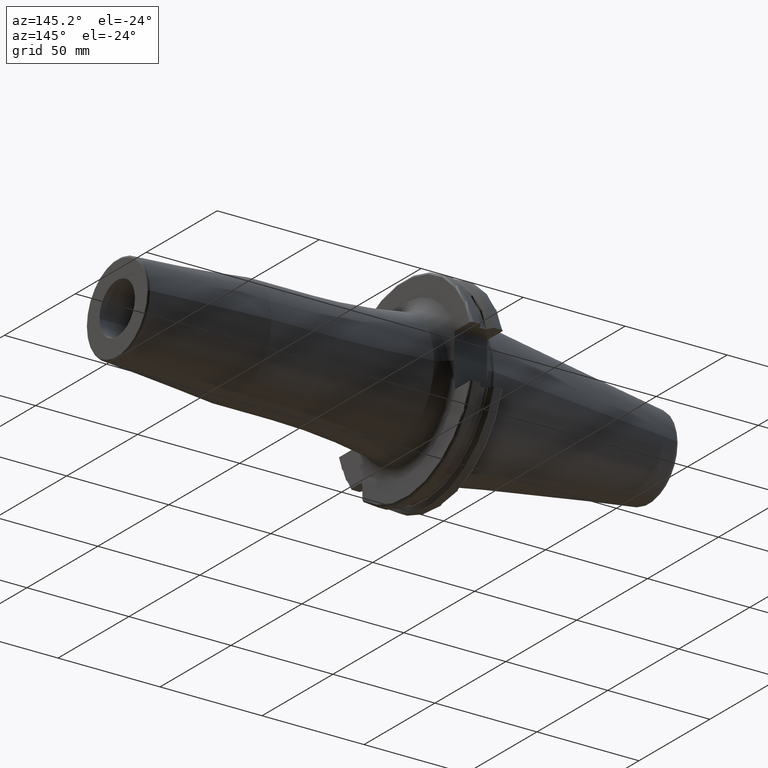
[diagram: clean part render]
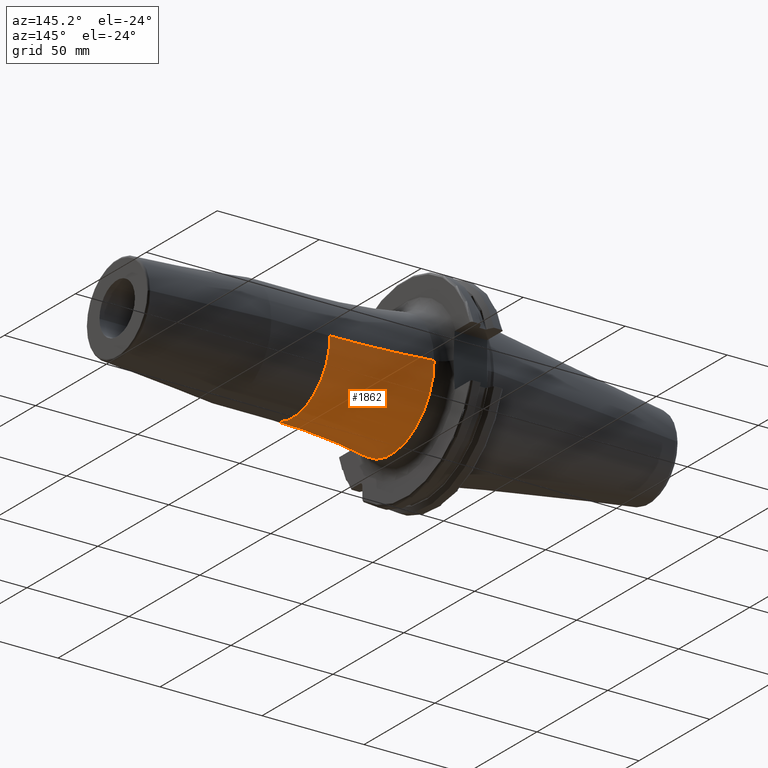
[diagram: same view with one face highlighted and labeled with its STEP entity id]
A machine part, auxiliary view. The second image highlights one B-rep face of the part: STEP entity #1862.
In plain terms, the highlighted toroidal blend (fillet) surface has major radius 326.5 mm and minor (blend) radius 300 mm.
Its self-contained STEP definition (entity closure, byte-faithful):
#234=CARTESIAN_POINT('',(2.576232876712E1,0.E0,0.E0));
#235=DIRECTION('',(1.E0,0.E0,0.E0));
#236=DIRECTION('',(0.E0,-1.E0,0.E0));
#237=AXIS2_PLACEMENT_3D('',#234,#235,#236);
#239=CARTESIAN_POINT('',(7.405E1,-3.265E2,-7.996943598432E-14));
#240=DIRECTION('',(0.E0,0.E0,1.E0));
#241=DIRECTION('',(0.E0,1.E0,0.E0));
#242=AXIS2_PLACEMENT_3D('',#239,#240,#241);
#244=CARTESIAN_POINT('',(7.405E1,3.265E2,3.998471799216E-14));
#245=DIRECTION('',(0.E0,0.E0,-1.E0));
#246=DIRECTION('',(0.E0,-1.E0,0.E0));
#247=AXIS2_PLACEMENT_3D('',#244,#245,#246);
#249=CARTESIAN_POINT('',(7.405E1,0.E0,0.E0));
#250=DIRECTION('',(1.E0,0.E0,0.E0));
#251=DIRECTION('',(0.E0,-1.E0,0.E0));
#252=AXIS2_PLACEMENT_3D('',#249,#250,#251);
#1509=CARTESIAN_POINT('',(7.405E1,2.65E1,0.E0));
#1510=CARTESIAN_POINT('',(7.405E1,-2.65E1,0.E0));
#1511=VERTEX_POINT('',#1509);
#1512=VERTEX_POINT('',#1510);
#1520=CARTESIAN_POINT('',(2.576232876712E1,-3.041166722259E1,0.E0));
#1521=CARTESIAN_POINT('',(2.576232876712E1,3.041166722259E1,0.E0));
#1522=VERTEX_POINT('',#1520);
#1523=VERTEX_POINT('',#1521);
#1850=CARTESIAN_POINT('',(7.405E1,0.E0,0.E0));
#1851=DIRECTION('',(1.E0,0.E0,0.E0));
#1852=DIRECTION('',(0.E0,-1.E0,0.E0));
#1853=AXIS2_PLACEMENT_3D('',#1850,#1851,#1852);
#1854=TOROIDAL_SURFACE('',#1853,3.265E2,3.E2);
#1855=ORIENTED_EDGE('',*,*,#1790,.F.);
#1856=ORIENTED_EDGE('',*,*,#1845,.F.);
#1858=ORIENTED_EDGE('',*,*,#1857,.T.);
#1859=ORIENTED_EDGE('',*,*,#1841,.T.);
#1860=EDGE_LOOP('',(#1855,#1856,#1858,#1859));
#1861=FACE_OUTER_BOUND('',#1860,.F.);
#1862=ADVANCED_FACE('',(#1861),#1854,.F.);
#238=CIRCLE('',#237,3.041166722259E1);
#243=CIRCLE('',#242,3.E2);
#248=CIRCLE('',#247,3.E2);
#253=CIRCLE('',#252,2.65E1);
#1790=EDGE_CURVE('',#1522,#1523,#238,.T.);
#1841=EDGE_CURVE('',#1511,#1523,#248,.T.);
#1845=EDGE_CURVE('',#1512,#1522,#243,.T.);
#1857=EDGE_CURVE('',#1512,#1511,#253,.T.);